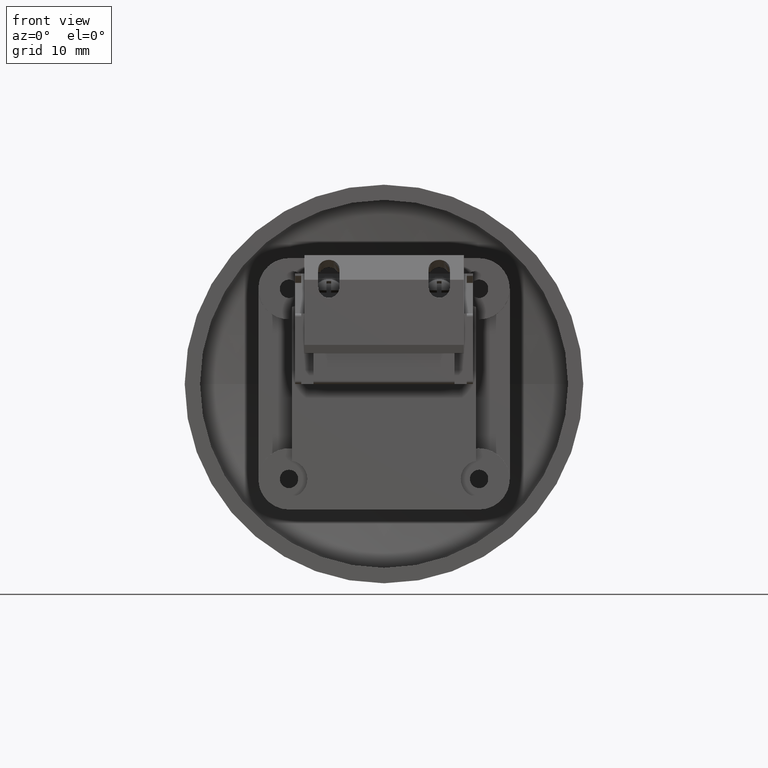
[diagram: clean part render]
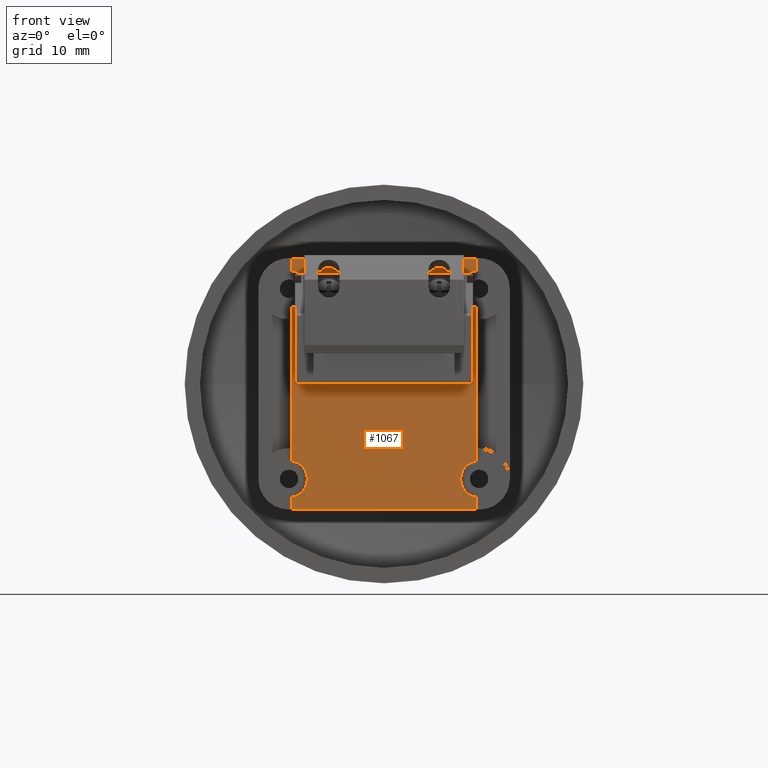
[diagram: same view with one face highlighted and labeled with its STEP entity id]
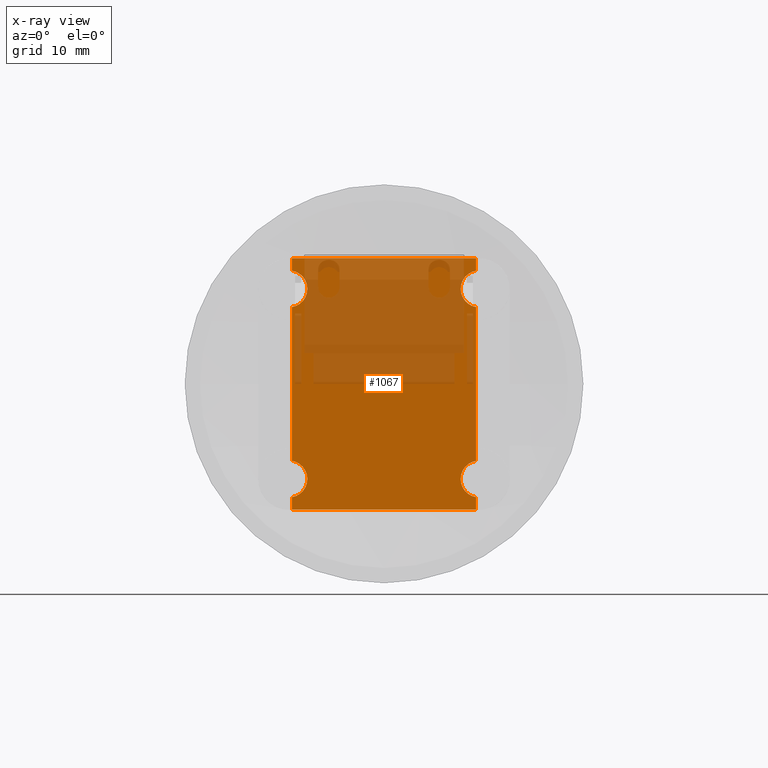
[diagram: x-ray of the same camera — body ghosted, the highlighted face saturated]
A machine part, front view. The second image highlights one B-rep face of the part: STEP entity #1067.
The next image is the same camera in x-ray: the body ghosted, the highlighted face saturated — about 43% of this face is hidden behind the body in this view.
In plain terms, the highlighted planar face has unit normal (0, -1, -0).
Its self-contained STEP definition (entity closure, byte-faithful):
#61 = DIRECTION ( 'NONE',  ( 0.0000000000000000000, 0.0000000000000000000, 1.000000000000000000 ) ) ;
#171 = ORIENTED_EDGE ( 'NONE', *, *, #5550, .F. ) ;
#208 = CARTESIAN_POINT ( 'NONE',  ( 15.00000000000000000, -21.00000000000000400, 20.50000000000000000 ) ) ;
#270 = LINE ( 'NONE', #3858, #6407 ) ;
#298 = DIRECTION ( 'NONE',  ( 1.000000000000000000, 0.0000000000000000000, 0.0000000000000000000 ) ) ;
#394 = ORIENTED_EDGE ( 'NONE', *, *, #5501, .F. ) ;
#464 = EDGE_CURVE ( 'NONE', #5090, #1127, #4653, .T. ) ;
#526 = EDGE_CURVE ( 'NONE', #1074, #7421, #583, .T. ) ;
#583 = LINE ( 'NONE', #5135, #1988 ) ;
#591 = AXIS2_PLACEMENT_3D ( 'NONE', #2050, #6207, #2655 ) ;
#664 = VERTEX_POINT ( 'NONE', #2932 ) ;
#716 = LINE ( 'NONE', #7705, #3673 ) ;
#759 = EDGE_CURVE ( 'NONE', #4732, #1092, #3644, .T. ) ;
#789 = ORIENTED_EDGE ( 'NONE', *, *, #464, .F. ) ;
#832 = CARTESIAN_POINT ( 'NONE',  ( 15.00000000000000000, -21.00000000000000400, -12.54196010845019400 ) ) ;
#929 = EDGE_CURVE ( 'NONE', #1127, #7333, #5689, .T. ) ;
#999 = DIRECTION ( 'NONE',  ( 0.0000000000000000000, 0.0000000000000000000, -1.000000000000000000 ) ) ;
#1006 = CIRCLE ( 'NONE', #591, 2.999999999999999100 ) ;
#1009 = DIRECTION ( 'NONE',  ( 0.0000000000000000000, -1.000000000000000000, -0.0000000000000000000 ) ) ;
#1067 = ADVANCED_FACE ( 'NONE', ( #1425 ), #6943, .T. ) ;
#1074 = VERTEX_POINT ( 'NONE', #6355 ) ;
#1092 = VERTEX_POINT ( 'NONE', #3991 ) ;
#1122 = ORIENTED_EDGE ( 'NONE', *, *, #1917, .F. ) ;
#1127 = VERTEX_POINT ( 'NONE', #6989 ) ;
#1182 = LINE ( 'NONE', #208, #7350 ) ;
#1300 = CARTESIAN_POINT ( 'NONE',  ( -15.00000000000000000, -21.00000000000000400, -20.50000000000000000 ) ) ;
#1425 = FACE_OUTER_BOUND ( 'NONE', #3357, .T. ) ;
#1448 = CARTESIAN_POINT ( 'NONE',  ( -15.00000000000000000, -21.00000000000000400, 12.54196010845019900 ) ) ;
#1616 = VERTEX_POINT ( 'NONE', #3494 ) ;
#1629 = ORIENTED_EDGE ( 'NONE', *, *, #759, .F. ) ;
#1775 = VERTEX_POINT ( 'NONE', #1300 ) ;
#1796 = CARTESIAN_POINT ( 'NONE',  ( -15.00000000000000000, -21.00000000000000400, 20.50000000000000000 ) ) ;
#1810 = DIRECTION ( 'NONE',  ( 0.0000000000000000000, -1.000000000000000000, 0.0000000000000000000 ) ) ;
#1886 = VERTEX_POINT ( 'NONE', #832 ) ;
#1917 = EDGE_CURVE ( 'NONE', #7421, #1775, #5184, .T. ) ;
#1988 = VECTOR ( 'NONE', #999, 1000.000000000000000 ) ;
#2044 = DIRECTION ( 'NONE',  ( -1.000000000000000000, 0.0000000000000000000, 0.0000000000000000000 ) ) ;
#2050 = CARTESIAN_POINT ( 'NONE',  ( 15.50000000000000000, -21.00000000000000400, -15.50000000000000400 ) ) ;
#2070 = EDGE_CURVE ( 'NONE', #664, #1616, #6895, .T. ) ;
#2333 = VERTEX_POINT ( 'NONE', #1448 ) ;
#2370 = EDGE_CURVE ( 'NONE', #1092, #5090, #270, .T. ) ;
#2514 = ORIENTED_EDGE ( 'NONE', *, *, #929, .F. ) ;
#2602 = DIRECTION ( 'NONE',  ( 0.0000000000000000000, 0.0000000000000000000, -1.000000000000000000 ) ) ;
#2655 = DIRECTION ( 'NONE',  ( 0.0000000000000000000, 0.0000000000000000000, -1.000000000000000000 ) ) ;
#2795 = DIRECTION ( 'NONE',  ( 0.0000000000000000000, -1.000000000000000000, 0.0000000000000000000 ) ) ;
#2922 = AXIS2_PLACEMENT_3D ( 'NONE', #3344, #1009, #5145 ) ;
#2932 = CARTESIAN_POINT ( 'NONE',  ( -15.00000000000000000, -21.00000000000000400, -18.45803989154979900 ) ) ;
#2955 = DIRECTION ( 'NONE',  ( 0.0000000000000000000, 0.0000000000000000000, 1.000000000000000000 ) ) ;
#3145 = AXIS2_PLACEMENT_3D ( 'NONE', #5348, #1810, #5946 ) ;
#3221 = CIRCLE ( 'NONE', #3145, 2.999999999999999100 ) ;
#3245 = CARTESIAN_POINT ( 'NONE',  ( 15.50000000000000000, -21.00000000000000400, 15.50000000000000000 ) ) ;
#3289 = VECTOR ( 'NONE', #3309, 1000.000000000000000 ) ;
#3309 = DIRECTION ( 'NONE',  ( 0.0000000000000000000, 0.0000000000000000000, -1.000000000000000000 ) ) ;
#3344 = CARTESIAN_POINT ( 'NONE',  ( 0.0000000000000000000, -21.00000000000000000, 0.0000000000000000000 ) ) ;
#3357 = EDGE_LOOP ( 'NONE', ( #1629, #5413, #7298, #7043, #7047, #1122, #6399, #171, #394, #2514, #789, #5771 ) ) ;
#3458 = VECTOR ( 'NONE', #61, 1000.000000000000000 ) ;
#3494 = CARTESIAN_POINT ( 'NONE',  ( -15.00000000000000000, -21.00000000000000400, -12.54196010845018500 ) ) ;
#3530 = DIRECTION ( 'NONE',  ( 0.0000000000000000000, 0.0000000000000000000, 1.000000000000000000 ) ) ;
#3601 = LINE ( 'NONE', #1796, #6213 ) ;
#3607 = CARTESIAN_POINT ( 'NONE',  ( -15.00000000000000000, -21.00000000000000400, 20.50000000000000000 ) ) ;
#3611 = VECTOR ( 'NONE', #2044, 1000.000000000000000 ) ;
#3644 = LINE ( 'NONE', #3607, #3458 ) ;
#3673 = VECTOR ( 'NONE', #3530, 1000.000000000000000 ) ;
#3706 = EDGE_CURVE ( 'NONE', #1775, #664, #716, .T. ) ;
#3810 = CARTESIAN_POINT ( 'NONE',  ( 15.00000000000000000, -21.00000000000000400, -20.50000000000000000 ) ) ;
#3836 = DIRECTION ( 'NONE',  ( 0.0000000000000000000, 0.0000000000000000000, -1.000000000000000000 ) ) ;
#3858 = CARTESIAN_POINT ( 'NONE',  ( 15.00000000000000000, -21.00000000000000400, 20.50000000000000000 ) ) ;
#3991 = CARTESIAN_POINT ( 'NONE',  ( -15.00000000000000000, -21.00000000000000400, 20.50000000000000000 ) ) ;
#4534 = CARTESIAN_POINT ( 'NONE',  ( 15.00000000000000000, -21.00000000000000400, 20.50000000000000000 ) ) ;
#4653 = LINE ( 'NONE', #6264, #3289 ) ;
#4732 = VERTEX_POINT ( 'NONE', #7617 ) ;
#5055 = AXIS2_PLACEMENT_3D ( 'NONE', #3245, #7419, #3836 ) ;
#5077 = CARTESIAN_POINT ( 'NONE',  ( 15.00000000000000000, -21.00000000000000400, 12.54196010845019100 ) ) ;
#5090 = VERTEX_POINT ( 'NONE', #4534 ) ;
#5135 = CARTESIAN_POINT ( 'NONE',  ( 15.00000000000000000, -21.00000000000000400, 20.50000000000000000 ) ) ;
#5145 = DIRECTION ( 'NONE',  ( 0.0000000000000000000, 0.0000000000000000000, -1.000000000000000000 ) ) ;
#5150 = CARTESIAN_POINT ( 'NONE',  ( 15.00000000000000000, -21.00000000000000400, -20.50000000000000000 ) ) ;
#5184 = LINE ( 'NONE', #3810, #3611 ) ;
#5309 = EDGE_CURVE ( 'NONE', #1616, #2333, #3601, .T. ) ;
#5348 = CARTESIAN_POINT ( 'NONE',  ( -15.50000000000000000, -21.00000000000000400, 15.50000000000000700 ) ) ;
#5413 = ORIENTED_EDGE ( 'NONE', *, *, #7113, .F. ) ;
#5501 = EDGE_CURVE ( 'NONE', #7333, #1886, #1182, .T. ) ;
#5550 = EDGE_CURVE ( 'NONE', #1886, #1074, #1006, .T. ) ;
#5689 = CIRCLE ( 'NONE', #5055, 3.000000000000000900 ) ;
#5771 = ORIENTED_EDGE ( 'NONE', *, *, #2370, .F. ) ;
#5946 = DIRECTION ( 'NONE',  ( 0.0000000000000000000, 0.0000000000000000000, -1.000000000000000000 ) ) ;
#6207 = DIRECTION ( 'NONE',  ( 0.0000000000000000000, -1.000000000000000000, 0.0000000000000000000 ) ) ;
#6213 = VECTOR ( 'NONE', #2955, 1000.000000000000000 ) ;
#6264 = CARTESIAN_POINT ( 'NONE',  ( 15.00000000000000000, -21.00000000000000400, 20.50000000000000000 ) ) ;
#6354 = CARTESIAN_POINT ( 'NONE',  ( -15.50000000000000400, -21.00000000000000400, -15.49999999999999300 ) ) ;
#6355 = CARTESIAN_POINT ( 'NONE',  ( 15.00000000000000000, -21.00000000000000400, -18.45803989154981300 ) ) ;
#6399 = ORIENTED_EDGE ( 'NONE', *, *, #526, .F. ) ;
#6407 = VECTOR ( 'NONE', #298, 1000.000000000000000 ) ;
#6895 = CIRCLE ( 'NONE', #7135, 2.999999999999999100 ) ;
#6943 = PLANE ( 'NONE',  #2922 ) ;
#6969 = DIRECTION ( 'NONE',  ( 0.0000000000000000000, 0.0000000000000000000, -1.000000000000000000 ) ) ;
#6989 = CARTESIAN_POINT ( 'NONE',  ( 15.00000000000000000, -21.00000000000000400, 18.45803989154980900 ) ) ;
#7043 = ORIENTED_EDGE ( 'NONE', *, *, #2070, .F. ) ;
#7047 = ORIENTED_EDGE ( 'NONE', *, *, #3706, .F. ) ;
#7113 = EDGE_CURVE ( 'NONE', #2333, #4732, #3221, .T. ) ;
#7135 = AXIS2_PLACEMENT_3D ( 'NONE', #6354, #2795, #6969 ) ;
#7298 = ORIENTED_EDGE ( 'NONE', *, *, #5309, .F. ) ;
#7333 = VERTEX_POINT ( 'NONE', #5077 ) ;
#7350 = VECTOR ( 'NONE', #2602, 1000.000000000000000 ) ;
#7419 = DIRECTION ( 'NONE',  ( 0.0000000000000000000, -1.000000000000000000, 0.0000000000000000000 ) ) ;
#7421 = VERTEX_POINT ( 'NONE', #5150 ) ;
#7617 = CARTESIAN_POINT ( 'NONE',  ( -15.00000000000000000, -21.00000000000000400, 18.45803989154981700 ) ) ;
#7705 = CARTESIAN_POINT ( 'NONE',  ( -15.00000000000000000, -21.00000000000000400, 20.50000000000000000 ) ) ;